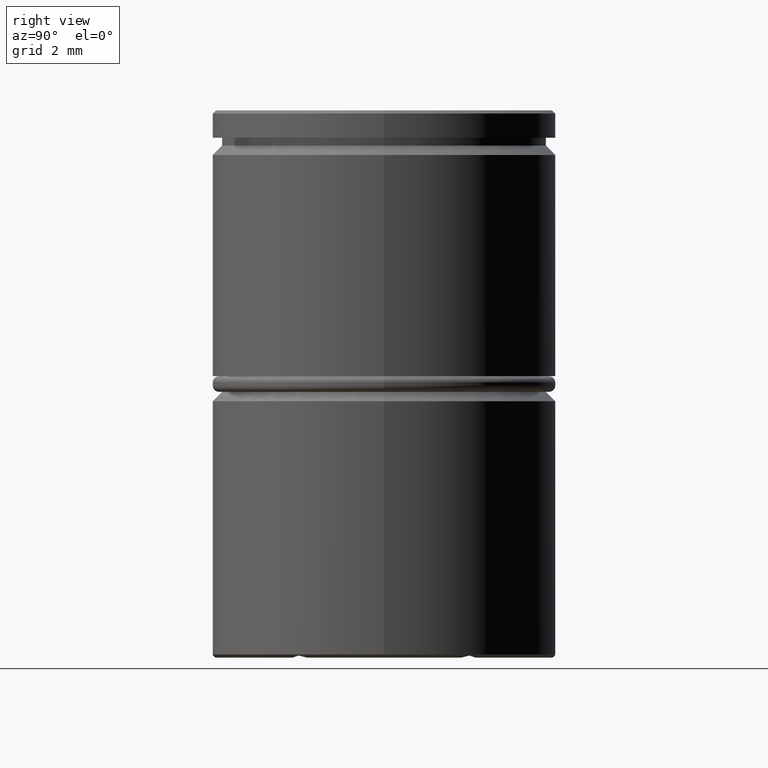
[diagram: clean part render]
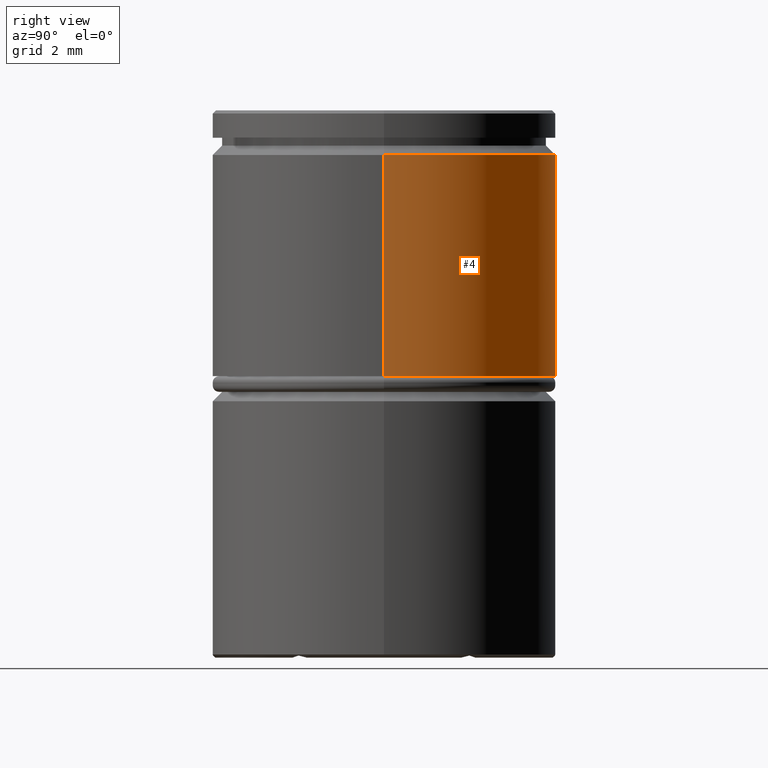
[diagram: same view with one face highlighted and labeled with its STEP entity id]
A machine part, right view. The second image highlights one B-rep face of the part: STEP entity #4.
In plain terms, the highlighted cylindrical surface (partial cylindrical patch) has radius 5.5 mm, axis along (-0, -0, 1).
Its self-contained STEP definition (entity closure, byte-faithful):
#4 = ADVANCED_FACE ( 'NONE', ( #37 ), #463, .T. ) ;
#9 = CARTESIAN_POINT ( 'NONE',  ( -5.500000000000000000, 6.735557395310442023E-16, 0.000000000000000000 ) ) ;
#37 = FACE_OUTER_BOUND ( 'NONE', #803, .T. ) ;
#40 = AXIS2_PLACEMENT_3D ( 'NONE', #1095, #319, #753 ) ;
#62 = EDGE_CURVE ( 'NONE', #764, #1164, #884, .T. ) ;
#84 = AXIS2_PLACEMENT_3D ( 'NONE', #1176, #1371, #423 ) ;
#90 = ORIENTED_EDGE ( 'NONE', *, *, #524, .T. ) ;
#103 = CARTESIAN_POINT ( 'NONE',  ( 5.500000000000000000, 0.000000000000000000, -1.425000000000005151 ) ) ;
#111 = LINE ( 'NONE', #9, #328 ) ;
#131 = CARTESIAN_POINT ( 'NONE',  ( 5.500000000000000000, 0.000000000000000000, 0.000000000000000000 ) ) ;
#191 = CIRCLE ( 'NONE', #924, 5.500000000000000000 ) ;
#224 = VERTEX_POINT ( 'NONE', #632 ) ;
#290 = DIRECTION ( 'NONE',  ( -0.000000000000000000, -0.000000000000000000, 1.000000000000000000 ) ) ;
#319 = DIRECTION ( 'NONE',  ( -0.000000000000000000, -0.000000000000000000, 1.000000000000000000 ) ) ;
#328 = VECTOR ( 'NONE', #1312, 1000.000000000000000 ) ;
#368 = CARTESIAN_POINT ( 'NONE',  ( -5.500000000000000000, 6.735557395310442023E-16, -8.500000000000000000 ) ) ;
#423 = DIRECTION ( 'NONE',  ( 1.000000000000000000, 0.000000000000000000, 0.000000000000000000 ) ) ;
#435 = CARTESIAN_POINT ( 'NONE',  ( 5.500000000000000000, 0.000000000000000000, -8.500000000000000000 ) ) ;
#463 = CYLINDRICAL_SURFACE ( 'NONE', #40, 5.500000000000000000 ) ;
#478 = VERTEX_POINT ( 'NONE', #368 ) ;
#509 = ORIENTED_EDGE ( 'NONE', *, *, #1023, .T. ) ;
#524 = EDGE_CURVE ( 'NONE', #478, #224, #111, .T. ) ;
#563 = CIRCLE ( 'NONE', #84, 5.500000000000000000 ) ;
#571 = ORIENTED_EDGE ( 'NONE', *, *, #645, .T. ) ;
#588 = DIRECTION ( 'NONE',  ( 1.000000000000000000, 0.000000000000000000, 0.000000000000000000 ) ) ;
#602 = VECTOR ( 'NONE', #1212, 1000.000000000000000 ) ;
#632 = CARTESIAN_POINT ( 'NONE',  ( -5.500000000000000000, 6.735557395310442023E-16, -1.425000000000005151 ) ) ;
#645 = EDGE_CURVE ( 'NONE', #224, #1164, #563, .T. ) ;
#723 = CARTESIAN_POINT ( 'NONE',  ( 0.000000000000000000, 0.000000000000000000, -8.500000000000000000 ) ) ;
#753 = DIRECTION ( 'NONE',  ( 1.000000000000000000, 0.000000000000000000, 0.000000000000000000 ) ) ;
#764 = VERTEX_POINT ( 'NONE', #435 ) ;
#803 = EDGE_LOOP ( 'NONE', ( #509, #90, #571, #953 ) ) ;
#884 = LINE ( 'NONE', #131, #602 ) ;
#924 = AXIS2_PLACEMENT_3D ( 'NONE', #723, #290, #588 ) ;
#953 = ORIENTED_EDGE ( 'NONE', *, *, #62, .F. ) ;
#1023 = EDGE_CURVE ( 'NONE', #764, #478, #191, .T. ) ;
#1095 = CARTESIAN_POINT ( 'NONE',  ( 0.000000000000000000, 0.000000000000000000, 0.000000000000000000 ) ) ;
#1164 = VERTEX_POINT ( 'NONE', #103 ) ;
#1176 = CARTESIAN_POINT ( 'NONE',  ( 0.000000000000000000, 0.000000000000000000, -1.425000000000005151 ) ) ;
#1212 = DIRECTION ( 'NONE',  ( -0.000000000000000000, -0.000000000000000000, 1.000000000000000000 ) ) ;
#1312 = DIRECTION ( 'NONE',  ( -0.000000000000000000, -0.000000000000000000, 1.000000000000000000 ) ) ;
#1371 = DIRECTION ( 'NONE',  ( 0.000000000000000000, 0.000000000000000000, -1.000000000000000000 ) ) ;